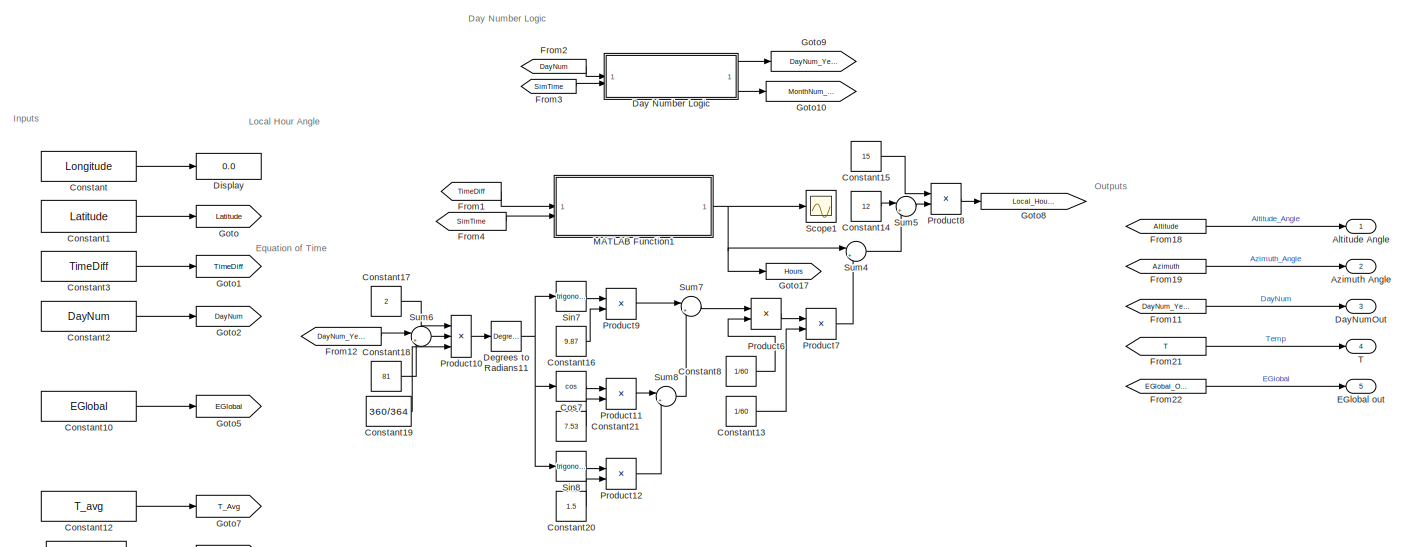
[diagram: root canvas - part 1/2, full width, top band]
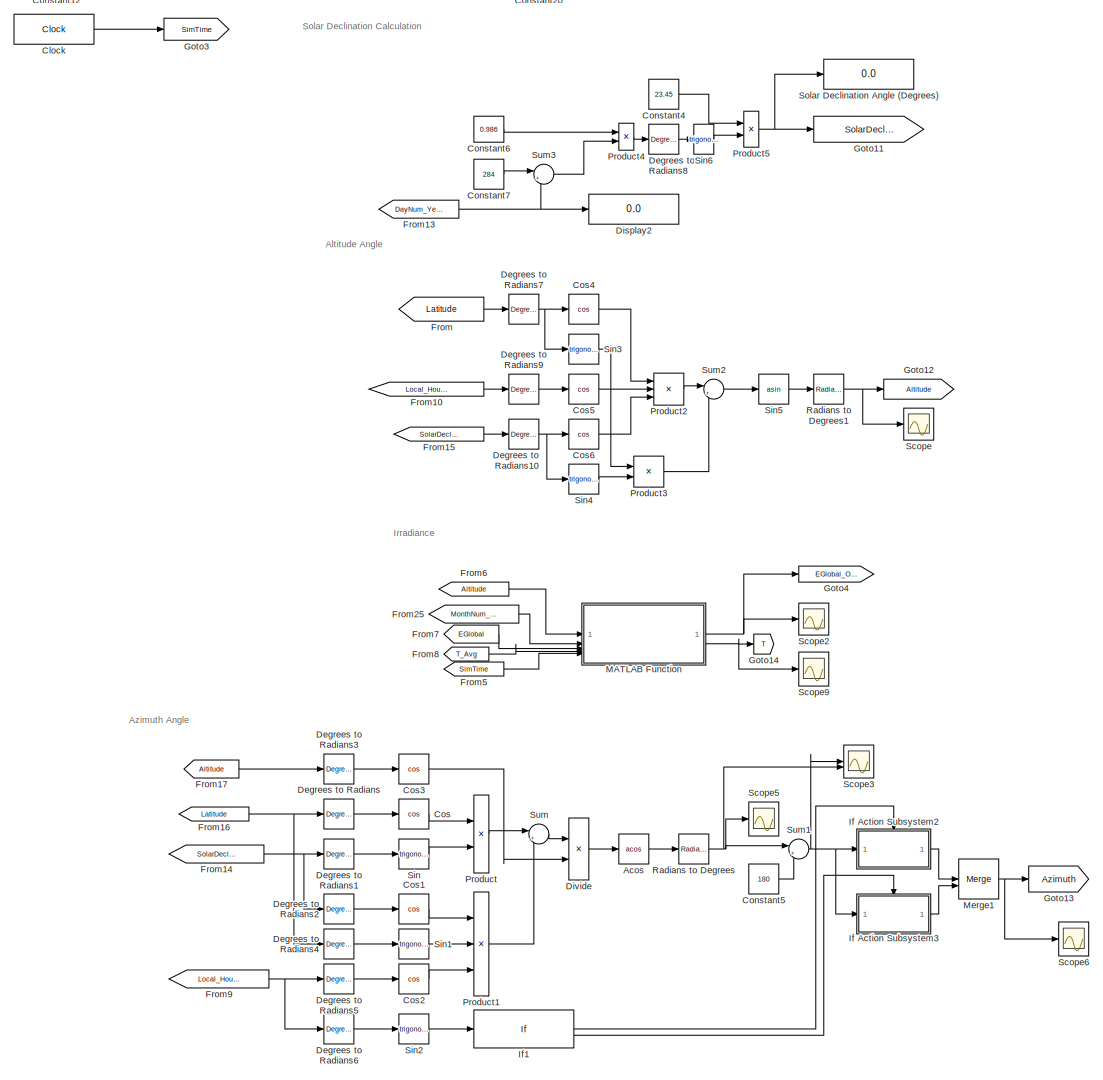
[diagram: root canvas - part 2/2, full width, middle band]
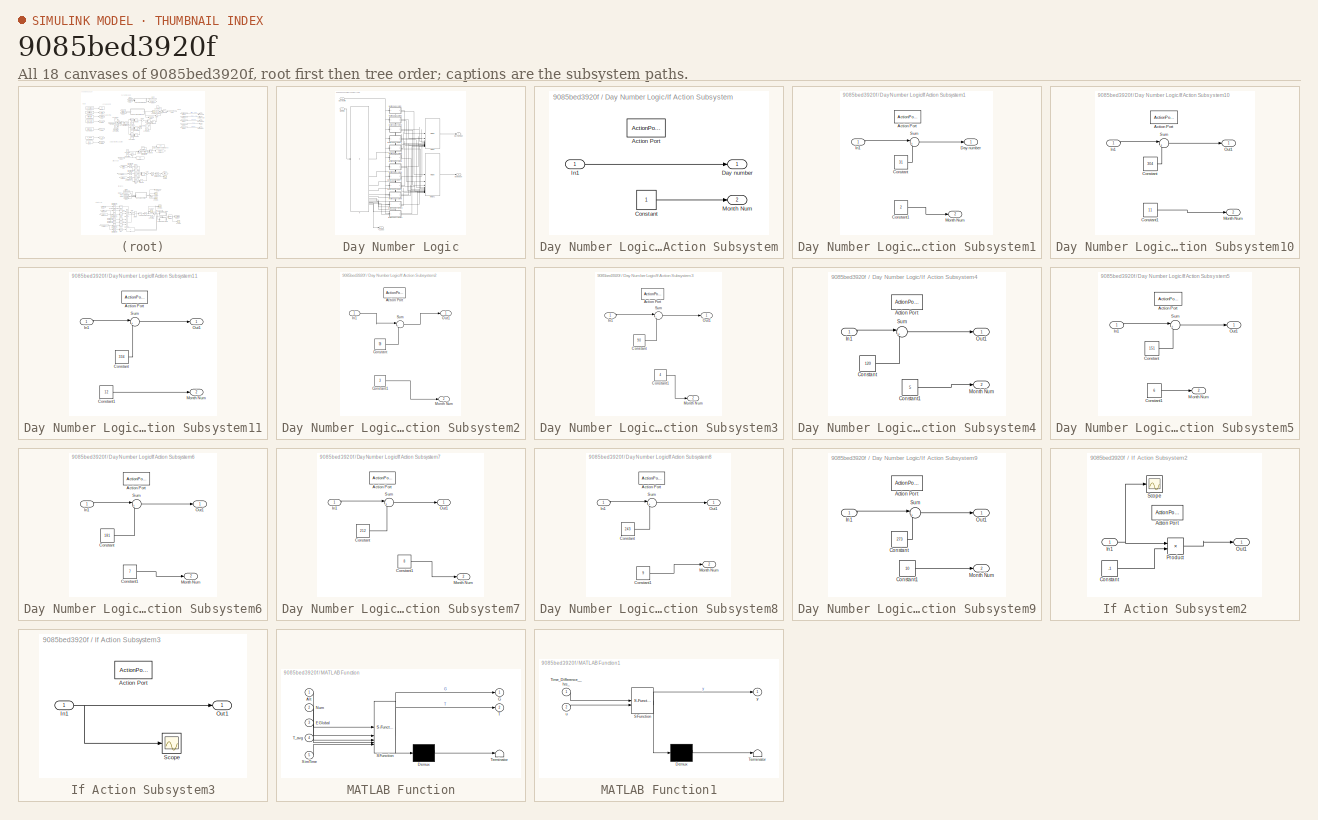
[diagram: thumbnail index - all 18 canvases of the model, root first then tree order]
MODEL slx_9085bed3920f
KIND model
CONFIG AbsTol = auto
CONFIG EnableMultiTasking = off
CONFIG FixedStep = 0.1
CONFIG MaxStep = auto
CONFIG MinStep = auto
CONFIG RelTol = 1e-3
CONFIG SampleTimeConstraint = Unconstrained
CONFIG SolverName = FixedStepAuto
CONFIG StartTime = 0.0
CONFIG StopTime = 1200
BLOCK [Trigonometry] Acos
  Operator = acos
BLOCK [Outport] Altitude Angle
BLOCK [Outport] Azimuth Angle
  Port = 2
BLOCK [Clock] Clock
  Decimation = 100
  DisplayTime = on
BLOCK [Constant] Constant
  Value = Longitude
BLOCK [Constant] Constant1
  Value = Latitude
BLOCK [Constant] Constant10
  Value = EGlobal
BLOCK [Constant] Constant12
  Value = T_avg
BLOCK [Constant] Constant13
  Value = 1/60
BLOCK [Constant] Constant14
  Value = 12
BLOCK [Constant] Constant15
  Value = 15
BLOCK [Constant] Constant16
  Value = 9.87
BLOCK [Constant] Constant17
  Value = 2
BLOCK [Constant] Constant18
  Value = 81
BLOCK [Constant] Constant19
  Value = 360/364
BLOCK [Constant] Constant2
  Value = DayNum
BLOCK [Constant] Constant20
  Value = 1.5
BLOCK [Constant] Constant21
  Value = 7.53
BLOCK [Constant] Constant3
  Value = TimeDiff
BLOCK [Constant] Constant4
  Value = 23.45
BLOCK [Constant] Constant5
  Value = 180
BLOCK [Constant] Constant6
  Value = 0.986
BLOCK [Constant] Constant7
  Value = 284
BLOCK [Constant] Constant8
  Value = 1/60
BLOCK [Trigonometry] Cos
  Operator = cos
BLOCK [Trigonometry] Cos1
  Operator = cos
BLOCK [Trigonometry] Cos2
  Operator = cos
BLOCK [Trigonometry] Cos3
  Operator = cos
BLOCK [Trigonometry] Cos4
  Operator = cos
BLOCK [Trigonometry] Cos5
  Operator = cos
BLOCK [Trigonometry] Cos6
  Operator = cos
BLOCK [Trigonometry] Cos7
  Operator = cos
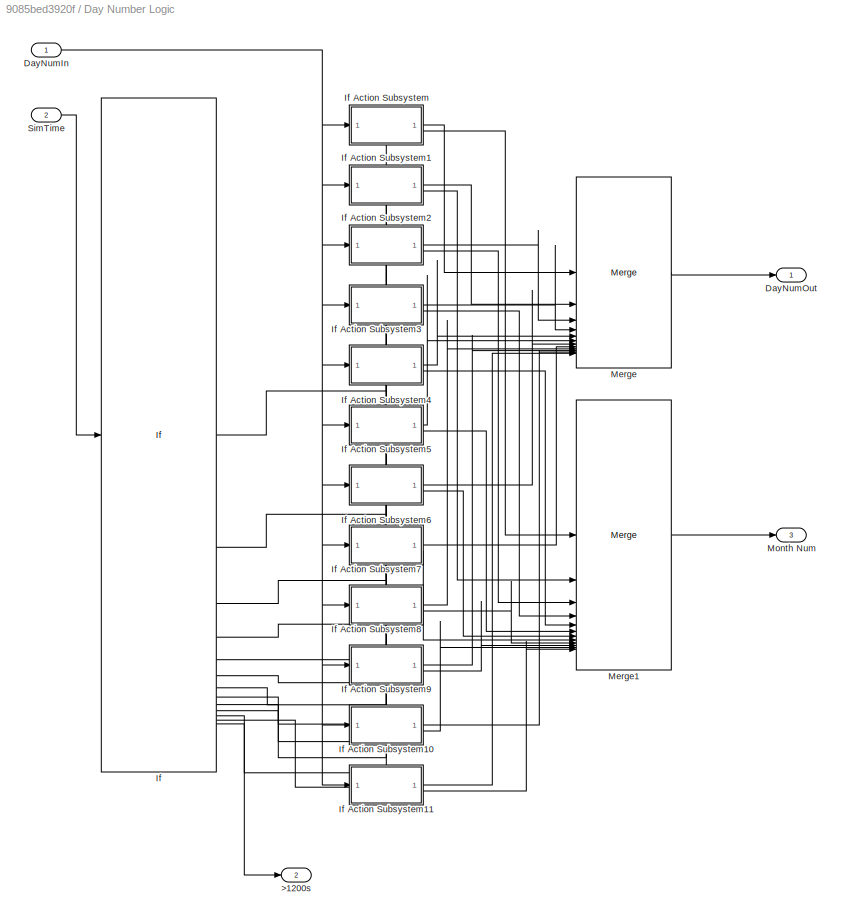
BLOCK [SubSystem] Day Number Logic
BLOCK [Outport] Day Number Logic/>1200s
  Port = 2
BLOCK [Inport] Day Number Logic/DayNumIn
BLOCK [Outport] Day Number Logic/DayNumOut
BLOCK [If] Day Number Logic/If
  ElseIfExpressions = 100<=u1 & u1<200, 200<=u1 & u1<300, 300<=u1 & u1<400, 400<=u1 & u1<500, 500<=u1 & u1<600, 600<=u1 & u1<700, 700<=u1 & u1<800, 800<=u1 & u1<900, 900<=u1 & u1<1000, 1000<=u1 & u1<1100, 1100<=u1 & u1<=1200
  IfExpression = u1 < 100
BLOCK [SubSystem] Day Number Logic/If Action Subsystem
  TreatAsAtomicUnit = on
BLOCK [ActionPort] Day Number Logic/If Action Subsystem/Action Port
  ActionPortLabel = if(u1 < 100)
BLOCK [Constant] Day Number Logic/If Action Subsystem/Constant
BLOCK [Outport] Day Number Logic/If Action Subsystem/Day number
BLOCK [Inport] Day Number Logic/If Action Subsystem/In1
BLOCK [Outport] Day Number Logic/If Action Subsystem/Month Num
  Port = 2
BLOCK [SubSystem] Day Number Logic/If Action Subsystem1
  TreatAsAtomicUnit = on
BLOCK [ActionPort] Day Number Logic/If Action Subsystem1/Action Port
  ActionPortLabel = elseif(100<=u1 & u1<200)
BLOCK [Constant] Day Number Logic/If Action Subsystem1/Constant
  Value = 31
BLOCK [Constant] Day Number Logic/If Action Subsystem1/Constant1
  Value = 2
BLOCK [Outport] Day Number Logic/If Action Subsystem1/Day number
BLOCK [Inport] Day Number Logic/If Action Subsystem1/In1
BLOCK [Outport] Day Number Logic/If Action Subsystem1/Month Num
  Port = 2
BLOCK [Sum] Day Number Logic/If Action Subsystem1/Sum
  Inputs = |++
BLOCK [SubSystem] Day Number Logic/If Action Subsystem10
  TreatAsAtomicUnit = on
BLOCK [ActionPort] Day Number Logic/If Action Subsystem10/Action Port
  ActionPortLabel = elseif( 1000<=u1 & u1<1100)
BLOCK [Constant] Day Number Logic/If Action Subsystem10/Constant
  Value = 304
BLOCK [Constant] Day Number Logic/If Action Subsystem10/Constant1
  Value = 11
BLOCK [Inport] Day Number Logic/If Action Subsystem10/In1
BLOCK [Outport] Day Number Logic/If Action Subsystem10/Month Num
  Port = 2
BLOCK [Outport] Day Number Logic/If Action Subsystem10/Out1
BLOCK [Sum] Day Number Logic/If Action Subsystem10/Sum
  Inputs = |++
BLOCK [SubSystem] Day Number Logic/If Action Subsystem11
  TreatAsAtomicUnit = on
BLOCK [ActionPort] Day Number Logic/If Action Subsystem11/Action Port
  ActionPortLabel = elseif( 1100<=u1 & u1<=1200)
BLOCK [Constant] Day Number Logic/If Action Subsystem11/Constant
  Value = 334
BLOCK [Constant] Day Number Logic/If Action Subsystem11/Constant1
  Value = 12
BLOCK [Inport] Day Number Logic/If Action Subsystem11/In1
BLOCK [Outport] Day Number Logic/If Action Subsystem11/Month Num
  Port = 2
BLOCK [Outport] Day Number Logic/If Action Subsystem11/Out1
BLOCK [Sum] Day Number Logic/If Action Subsystem11/Sum
  Inputs = |++
BLOCK [SubSystem] Day Number Logic/If Action Subsystem2
  TreatAsAtomicUnit = on
BLOCK [ActionPort] Day Number Logic/If Action Subsystem2/Action Port
  ActionPortLabel = elseif( 200<=u1 & u1<300)
BLOCK [Constant] Day Number Logic/If Action Subsystem2/Constant
  Value = 59
BLOCK [Constant] Day Number Logic/If Action Subsystem2/Constant1
  Value = 3
BLOCK [Inport] Day Number Logic/If Action Subsystem2/In1
BLOCK [Outport] Day Number Logic/If Action Subsystem2/Month Num
  Port = 2
BLOCK [Outport] Day Number Logic/If Action Subsystem2/Out1
BLOCK [Sum] Day Number Logic/If Action Subsystem2/Sum
  Inputs = |++
BLOCK [SubSystem] Day Number Logic/If Action Subsystem3
  TreatAsAtomicUnit = on
BLOCK [ActionPort] Day Number Logic/If Action Subsystem3/Action Port
  ActionPortLabel = elseif( 300<=u1 & u1<400)
BLOCK [Constant] Day Number Logic/If Action Subsystem3/Constant
  Value = 90
BLOCK [Constant] Day Number Logic/If Action Subsystem3/Constant1
  Value = 4
BLOCK [Inport] Day Number Logic/If Action Subsystem3/In1
BLOCK [Outport] Day Number Logic/If Action Subsystem3/Month Num
  Port = 2
BLOCK [Outport] Day Number Logic/If Action Subsystem3/Out1
BLOCK [Sum] Day Number Logic/If Action Subsystem3/Sum
  Inputs = |++
BLOCK [SubSystem] Day Number Logic/If Action Subsystem4
  TreatAsAtomicUnit = on
BLOCK [ActionPort] Day Number Logic/If Action Subsystem4/Action Port
  ActionPortLabel = elseif( 400<=u1 & u1<500)
BLOCK [Constant] Day Number Logic/If Action Subsystem4/Constant
  Value = 120
BLOCK [Constant] Day Number Logic/If Action Subsystem4/Constant1
  Value = 5
BLOCK [Inport] Day Number Logic/If Action Subsystem4/In1
BLOCK [Outport] Day Number Logic/If Action Subsystem4/Month Num
  Port = 2
BLOCK [Outport] Day Number Logic/If Action Subsystem4/Out1
BLOCK [Sum] Day Number Logic/If Action Subsystem4/Sum
  Inputs = |++
BLOCK [SubSystem] Day Number Logic/If Action Subsystem5
  TreatAsAtomicUnit = on
BLOCK [ActionPort] Day Number Logic/If Action Subsystem5/Action Port
  ActionPortLabel = elseif( 500<=u1 & u1<600)
BLOCK [Constant] Day Number Logic/If Action Subsystem5/Constant
  Value = 151
BLOCK [Constant] Day Number Logic/If Action Subsystem5/Constant1
  Value = 6
BLOCK [Inport] Day Number Logic/If Action Subsystem5/In1
BLOCK [Outport] Day Number Logic/If Action Subsystem5/Month Num
  Port = 2
BLOCK [Outport] Day Number Logic/If Action Subsystem5/Out1
BLOCK [Sum] Day Number Logic/If Action Subsystem5/Sum
  Inputs = |++
BLOCK [SubSystem] Day Number Logic/If Action Subsystem6
  TreatAsAtomicUnit = on
BLOCK [ActionPort] Day Number Logic/If Action Subsystem6/Action Port
  ActionPortLabel = elseif( 600<=u1 & u1<700)
BLOCK [Constant] Day Number Logic/If Action Subsystem6/Constant
  Value = 181
BLOCK [Constant] Day Number Logic/If Action Subsystem6/Constant1
  Value = 7
BLOCK [Inport] Day Number Logic/If Action Subsystem6/In1
BLOCK [Outport] Day Number Logic/If Action Subsystem6/Month Num
  Port = 2
BLOCK [Outport] Day Number Logic/If Action Subsystem6/Out1
BLOCK [Sum] Day Number Logic/If Action Subsystem6/Sum
  Inputs = |++
BLOCK [SubSystem] Day Number Logic/If Action Subsystem7
  TreatAsAtomicUnit = on
BLOCK [ActionPort] Day Number Logic/If Action Subsystem7/Action Port
  ActionPortLabel = elseif( 700<=u1 & u1<800)
BLOCK [Constant] Day Number Logic/If Action Subsystem7/Constant
  Value = 212
BLOCK [Constant] Day Number Logic/If Action Subsystem7/Constant1
  Value = 8
BLOCK [Inport] Day Number Logic/If Action Subsystem7/In1
BLOCK [Outport] Day Number Logic/If Action Subsystem7/Month Num
  Port = 2
BLOCK [Outport] Day Number Logic/If Action Subsystem7/Out1
BLOCK [Sum] Day Number Logic/If Action Subsystem7/Sum
  Inputs = |++
BLOCK [SubSystem] Day Number Logic/If Action Subsystem8
  TreatAsAtomicUnit = on
BLOCK [ActionPort] Day Number Logic/If Action Subsystem8/Action Port
  ActionPortLabel = elseif( 800<=u1 & u1<900)
BLOCK [Constant] Day Number Logic/If Action Subsystem8/Constant
  Value = 243
BLOCK [Constant] Day Number Logic/If Action Subsystem8/Constant1
  Value = 9
BLOCK [Inport] Day Number Logic/If Action Subsystem8/In1
BLOCK [Outport] Day Number Logic/If Action Subsystem8/Month Num
  Port = 2
BLOCK [Outport] Day Number Logic/If Action Subsystem8/Out1
BLOCK [Sum] Day Number Logic/If Action Subsystem8/Sum
  Inputs = |++
BLOCK [SubSystem] Day Number Logic/If Action Subsystem9
  TreatAsAtomicUnit = on
BLOCK [ActionPort] Day Number Logic/If Action Subsystem9/Action Port
  ActionPortLabel = elseif( 900<=u1 & u1<1000)
BLOCK [Constant] Day Number Logic/If Action Subsystem9/Constant
  Value = 273
BLOCK [Constant] Day Number Logic/If Action Subsystem9/Constant1
  Value = 10
BLOCK [Inport] Day Number Logic/If Action Subsystem9/In1
BLOCK [Outport] Day Number Logic/If Action Subsystem9/Month Num
  Port = 2
BLOCK [Outport] Day Number Logic/If Action Subsystem9/Out1
BLOCK [Sum] Day Number Logic/If Action Subsystem9/Sum
  Inputs = |++
BLOCK [Merge] Day Number Logic/Merge
  Inputs = 12
BLOCK [Merge] Day Number Logic/Merge1
  Inputs = 12
BLOCK [Outport] Day Number Logic/Month Num
  Port = 3
BLOCK [Inport] Day Number Logic/SimTime
  Port = 2
BLOCK [Outport] DayNumOut
  Port = 3
BLOCK [Reference] Degrees to Radians  REF=simulink_extras/Transformations/Degrees to
Radians
  SourceBlock = simulink_extras/Transformations/Degrees to\nRadians
  SourceType = DegreesToRadians
BLOCK [Reference] Degrees to Radians1  REF=simulink_extras/Transformations/Degrees to
Radians
  SourceBlock = simulink_extras/Transformations/Degrees to\nRadians
  SourceType = DegreesToRadians
BLOCK [Reference] Degrees to Radians10  REF=simulink_extras/Transformations/Degrees to
Radians
  SourceBlock = simulink_extras/Transformations/Degrees to\nRadians
  SourceType = DegreesToRadians
BLOCK [Reference] Degrees to Radians11  REF=simulink_extras/Transformations/Degrees to
Radians
  SourceBlock = simulink_extras/Transformations/Degrees to\nRadians
  SourceType = DegreesToRadians
BLOCK [Reference] Degrees to Radians2  REF=simulink_extras/Transformations/Degrees to
Radians
  SourceBlock = simulink_extras/Transformations/Degrees to\nRadians
  SourceType = DegreesToRadians
BLOCK [Reference] Degrees to Radians3  REF=simulink_extras/Transformations/Degrees to
Radians
  SourceBlock = simulink_extras/Transformations/Degrees to\nRadians
  SourceType = DegreesToRadians
BLOCK [Reference] Degrees to Radians4  REF=simulink_extras/Transformations/Degrees to
Radians
  SourceBlock = simulink_extras/Transformations/Degrees to\nRadians
  SourceType = DegreesToRadians
BLOCK [Reference] Degrees to Radians5  REF=simulink_extras/Transformations/Degrees to
Radians
  SourceBlock = simulink_extras/Transformations/Degrees to\nRadians
  SourceType = DegreesToRadians
BLOCK [Reference] Degrees to Radians6  REF=simulink_extras/Transformations/Degrees to
Radians
  SourceBlock = simulink_extras/Transformations/Degrees to\nRadians
  SourceType = DegreesToRadians
BLOCK [Reference] Degrees to Radians7  REF=simulink_extras/Transformations/Degrees to
Radians
  SourceBlock = simulink_extras/Transformations/Degrees to\nRadians
  SourceType = DegreesToRadians
BLOCK [Reference] Degrees to Radians8  REF=simulink_extras/Transformations/Degrees to
Radians
  SourceBlock = simulink_extras/Transformations/Degrees to\nRadians
  SourceType = DegreesToRadians
BLOCK [Reference] Degrees to Radians9  REF=simulink_extras/Transformations/Degrees to
Radians
  SourceBlock = simulink_extras/Transformations/Degrees to\nRadians
  SourceType = DegreesToRadians
BLOCK [Display] Display
  Decimation = 1
BLOCK [Display] Display2
  Decimation = 1
BLOCK [Product] Divide
  Inputs = */
BLOCK [Outport] EGlobal out
  Port = 5
BLOCK [From] From
  GotoTag = Latitude
BLOCK [From] From1
  GotoTag = TimeDiff
BLOCK [From] From10
  GotoTag = Local_Hour_Angle
BLOCK [From] From11
  GotoTag = DayNum_Year
BLOCK [From] From12
  GotoTag = DayNum_Year
BLOCK [From] From13
  GotoTag = DayNum_Year
BLOCK [From] From14
  GotoTag = SolarDeclination
BLOCK [From] From15
  GotoTag = SolarDeclination
BLOCK [From] From16
  GotoTag = Latitude
BLOCK [From] From17
  GotoTag = Altitude
BLOCK [From] From18
  GotoTag = Altitude
BLOCK [From] From19
  GotoTag = Azimuth
BLOCK [From] From2
  GotoTag = DayNum
BLOCK [From] From21
  GotoTag = T
BLOCK [From] From22
  GotoTag = EGlobal_Out
BLOCK [From] From25
  GotoTag = MonthNum_Year
BLOCK [From] From3
  GotoTag = SimTime
BLOCK [From] From4
  GotoTag = SimTime
BLOCK [From] From5
  GotoTag = SimTime
BLOCK [From] From6
  GotoTag = Altitude
BLOCK [From] From7
  GotoTag = EGlobal
BLOCK [From] From8
  GotoTag = T_Avg
BLOCK [From] From9
  GotoTag = Local_Hour_Angle
BLOCK [Goto] Goto
  GotoTag = Latitude
BLOCK [Goto] Goto1
  GotoTag = TimeDiff
BLOCK [Goto] Goto10
  GotoTag = MonthNum_Year
BLOCK [Goto] Goto11
  GotoTag = SolarDeclination
BLOCK [Goto] Goto12
  GotoTag = Altitude
BLOCK [Goto] Goto13
  GotoTag = Azimuth
BLOCK [Goto] Goto14
  GotoTag = T
BLOCK [Goto] Goto17
  GotoTag = Hours
BLOCK [Goto] Goto2
  GotoTag = DayNum
BLOCK [Goto] Goto3
  GotoTag = SimTime
BLOCK [Goto] Goto4
  GotoTag = EGlobal_Out
BLOCK [Goto] Goto5
  GotoTag = EGlobal
BLOCK [Goto] Goto7
  GotoTag = T_Avg
BLOCK [Goto] Goto8
  GotoTag = Local_Hour_Angle
BLOCK [Goto] Goto9
  GotoTag = DayNum_Year
BLOCK [SubSystem] If Action Subsystem2
  TreatAsAtomicUnit = on
BLOCK [ActionPort] If Action Subsystem2/Action Port
  ActionPortLabel = if(u1 > 0)
BLOCK [Constant] If Action Subsystem2/Constant
  Value = -1
BLOCK [Inport] If Action Subsystem2/In1
BLOCK [Outport] If Action Subsystem2/Out1
BLOCK [Product] If Action Subsystem2/Product
BLOCK [Scope] If Action Subsystem2/Scope
  Floating = off
  NumInputPorts = 1
  ScopeSpecificationString = Simulink.scopes.TimeScopeBlockCfg('CurrentConfiguration', extmgr.ConfigurationSet(extmgr.Configuration('Core','General UI',true),extmgr.Configuration('Core','Source UI',true),extmgr.Configuration('Sources','WiredSimulink',true,'DataLoggingVariableName','ScopeData1'),extmgr.Configuration('Visuals','Time Domain',true,'SerializedDisplays',{struct('MinYLimReal','-202.46258','MaxYLimReal','22.46675','Y...<+1463ch>
BLOCK [SubSystem] If Action Subsystem3
  TreatAsAtomicUnit = on
BLOCK [ActionPort] If Action Subsystem3/Action Port
  ActionPortLabel = else
BLOCK [Inport] If Action Subsystem3/In1
BLOCK [Outport] If Action Subsystem3/Out1
BLOCK [Scope] If Action Subsystem3/Scope
  Floating = off
  NumInputPorts = 1
  ScopeSpecificationString = Simulink.scopes.TimeScopeBlockCfg('CurrentConfiguration', extmgr.ConfigurationSet(extmgr.Configuration('Core','General UI',true),extmgr.Configuration('Core','Source UI',true),extmgr.Configuration('Sources','WiredSimulink',true,'DataLoggingVariableName','ScopeData2'),extmgr.Configuration('Visuals','Time Domain',true,'SerializedDisplays',{struct('MinYLimReal','-202.45968','MaxYLimReal','22.46643','Y...<+1463ch>
BLOCK [If] If1
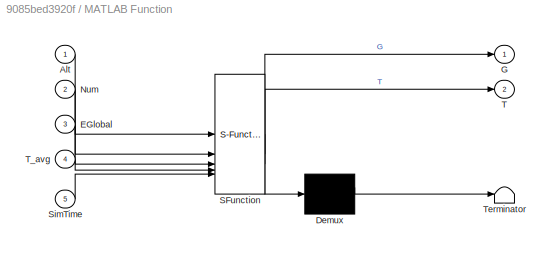
BLOCK [SubSystem] MATLAB Function
  ErrorFcn = Stateflow.Translate.translate
  PermitHierarchicalResolution = ExplicitOnly
  SFBlockType = MATLAB Function
  TreatAsAtomicUnit = on
BLOCK [Demux] MATLAB Function/ Demux 
  Outputs = 1
BLOCK [S-Function] MATLAB Function/ SFunction 
  EnableBusSupport = on
  FunctionName = sf_sfun
  PortCounts = [5 3]
  SFcnIsStateOwnerBlock = off
  SFunctionDeploymentMode = off
  Tag = Stateflow S-Function 1
BLOCK [Terminator] MATLAB Function/ Terminator 
BLOCK [Inport] MATLAB Function/Alt
BLOCK [Inport] MATLAB Function/EGlobal
  Port = 3
BLOCK [Outport] MATLAB Function/G
BLOCK [Inport] MATLAB Function/Num
  Port = 2
BLOCK [Inport] MATLAB Function/SimTime
  Port = 5
BLOCK [Outport] MATLAB Function/T
  Port = 2
BLOCK [Inport] MATLAB Function/T_avg
  Port = 4
BLOCK [SubSystem] MATLAB Function1
  ErrorFcn = Stateflow.Translate.translate
  PermitHierarchicalResolution = ExplicitOnly
  SFBlockType = MATLAB Function
  TreatAsAtomicUnit = on
BLOCK [Demux] MATLAB Function1/ Demux 
  Outputs = 1
BLOCK [S-Function] MATLAB Function1/ SFunction 
  EnableBusSupport = on
  FunctionName = sf_sfun
  PortCounts = [2 2]
  SFcnIsStateOwnerBlock = off
  SFunctionDeploymentMode = off
  Tag = Stateflow S-Function 2
BLOCK [Terminator] MATLAB Function1/ Terminator 
BLOCK [Inport] MATLAB Function1/Time_Difference__hrs_
BLOCK [Inport] MATLAB Function1/u
  Port = 2
BLOCK [Outport] MATLAB Function1/y
BLOCK [Merge] Merge1
BLOCK [Product] Product
BLOCK [Product] Product1
  Inputs = 3
BLOCK [Product] Product10
  Inputs = 3
BLOCK [Product] Product11
BLOCK [Product] Product12
BLOCK [Product] Product2
  Inputs = 3
BLOCK [Product] Product3
BLOCK [Product] Product4
BLOCK [Product] Product5
BLOCK [Product] Product6
BLOCK [Product] Product7
BLOCK [Product] Product8
BLOCK [Product] Product9
BLOCK [Reference] Radians to Degrees  REF=simulink_extras/Transformations/Radians
to Degrees
  SourceBlock = simulink_extras/Transformations/Radians\nto Degrees
  SourceType = RadiansToDegrees
BLOCK [Reference] Radians to Degrees1  REF=simulink_extras/Transformations/Radians
to Degrees
  SourceBlock = simulink_extras/Transformations/Radians\nto Degrees
  SourceType = RadiansToDegrees
BLOCK [Scope] Scope
  Floating = off
  NumInputPorts = 1
  ScopeSpecificationString = Simulink.scopes.TimeScopeBlockCfg('CurrentConfiguration', extmgr.ConfigurationSet(extmgr.Configuration('Core','General UI',true),extmgr.Configuration('Core','Source UI',true),extmgr.Configuration('Sources','WiredSimulink',true,'DataLoggingVariableName','ScopeData3'),extmgr.Configuration('Visuals','Time Domain',true,'SerializedDisplays',{struct('MinYLimReal','-108.58729','MaxYLimReal','108.76384','...<+1927ch>
BLOCK [Scope] Scope1
  Floating = off
  NumInputPorts = 1
  ScopeSpecificationString = Simulink.scopes.TimeScopeBlockCfg('CurrentConfiguration', extmgr.ConfigurationSet(extmgr.Configuration('Core','General UI',true),extmgr.Configuration('Core','Source UI',true),extmgr.Configuration('Sources','WiredSimulink',true),extmgr.Configuration('Visuals','Time Domain',true,'SerializedDisplays',{struct('MinYLimReal','-2.997','MaxYLimReal','26.973','YLabelReal','','MinYLimMag','0.00000','MaxYLim...<+1446ch>
BLOCK [Scope] Scope2
  Floating = off
  NumInputPorts = 1
  ScopeSpecificationString = Simulink.scopes.TimeScopeBlockCfg('CurrentConfiguration', extmgr.ConfigurationSet(extmgr.Configuration('Core','General UI',true),extmgr.Configuration('Core','Source UI',true),extmgr.Configuration('Sources','WiredSimulink',true,'DataLoggingVariableName','ScopeData1'),extmgr.Configuration('Visuals','Time Domain',true,'SerializedDisplays',{struct('MinYLimReal','-2141.53509','MaxYLimReal','3578.81721'...<+1872ch>
BLOCK [Scope] Scope3
  Floating = off
  NumInputPorts = 2
  ScopeSpecificationString = Simulink.scopes.TimeScopeBlockCfg('CurrentConfiguration', extmgr.ConfigurationSet(extmgr.Configuration('Core','General UI',true),extmgr.Configuration('Core','Source UI',true),extmgr.Configuration('Sources','WiredSimulink',true,'DataLoggingVariableName','ScopeData3'),extmgr.Configuration('Visuals','Time Domain',true,'SerializedDisplays',{struct('MinYLimReal','-202.85711','MaxYLimReal','26.02981','Y...<+1558ch>
BLOCK [Scope] Scope5
  Floating = off
  NumInputPorts = 1
  ScopeSpecificationString = Simulink.scopes.TimeScopeBlockCfg('CurrentConfiguration', extmgr.ConfigurationSet(extmgr.Configuration('Core','General UI',true),extmgr.Configuration('Core','Source UI',true),extmgr.Configuration('Sources','WiredSimulink',true,'DataLoggingVariableName','ScopeData7'),extmgr.Configuration('Visuals','Time Domain',true,'SerializedDisplays',{struct('MinYLimReal','-22.46258','MaxYLimReal','202.46675','Y...<+1506ch>
BLOCK [Scope] Scope6
  Floating = off
  NumInputPorts = 1
  ScopeSpecificationString = Simulink.scopes.TimeScopeBlockCfg('CurrentConfiguration', extmgr.ConfigurationSet(extmgr.Configuration('Core','General UI',true),extmgr.Configuration('Core','Source UI',true),extmgr.Configuration('Sources','WiredSimulink',true,'DataLoggingVariableName','ScopeData4'),extmgr.Configuration('Visuals','Time Domain',true,'SerializedDisplays',{struct('MinYLimReal','-224.98421','MaxYLimReal','224.98444','...<+1581ch>
BLOCK [Scope] Scope9
  Floating = off
  NumInputPorts = 1
  ScopeSpecificationString = Simulink.scopes.TimeScopeBlockCfg('CurrentConfiguration', extmgr.ConfigurationSet(extmgr.Configuration('Core','General UI',true),extmgr.Configuration('Core','Source UI',true),extmgr.Configuration('Sources','WiredSimulink',true,'DataLoggingVariableName','ScopeData1'),extmgr.Configuration('Visuals','Time Domain',true,'SerializedDisplays',{struct('MinYLimReal','4.28375','MaxYLimReal','15.14625','YLab...<+1822ch>
BLOCK [Trigonometry] Sin
BLOCK [Trigonometry] Sin1
BLOCK [Trigonometry] Sin2
BLOCK [Trigonometry] Sin3
BLOCK [Trigonometry] Sin4
BLOCK [Trigonometry] Sin5
  Operator = asin
BLOCK [Trigonometry] Sin6
BLOCK [Trigonometry] Sin7
BLOCK [Trigonometry] Sin8
BLOCK [Display] Solar Declination Angle (Degrees)
  Decimation = 1
BLOCK [Sum] Sum
  Inputs = |+-
BLOCK [Sum] Sum1
  Inputs = |+-
BLOCK [Sum] Sum2
  Inputs = |++
BLOCK [Sum] Sum3
  Inputs = |++
BLOCK [Sum] Sum4
  Inputs = |++
BLOCK [Sum] Sum5
  Inputs = |+-
BLOCK [Sum] Sum6
  Inputs = |+-
BLOCK [Sum] Sum7
  Inputs = |+-
BLOCK [Sum] Sum8
  Inputs = |+-
BLOCK [Outport] T
  Port = 4
ANNOTATION (root): Altitude Angle
ANNOTATION (root): Azimuth Angle
ANNOTATION (root): Day Number Logic
ANNOTATION (root): Equation of Time
ANNOTATION (root): Inputs
ANNOTATION (root): Irradiance
ANNOTATION (root): Local Hour Angle
ANNOTATION (root): Outputs
ANNOTATION (root): Solar Declination Calculation
LINE Acos:1 -> Radians to Degrees:1
LINE Clock:1 -> Goto3:1
LINE Constant10:1 -> Goto5:1
LINE Constant12:1 -> Goto7:1
LINE Constant13:1 -> Product7:2
LINE Constant14:1 -> Sum5:1
LINE Constant15:1 -> Product8:1
LINE Constant16:1 -> Product9:2
LINE Constant17:1 -> Product10:1
LINE Constant18:1 -> Sum6:2
LINE Constant19:1 -> Product10:3
LINE Constant1:1 -> Goto:1
LINE Constant20:1 -> Product12:2
LINE Constant21:1 -> Product11:2
LINE Constant2:1 -> Goto2:1
LINE Constant3:1 -> Goto1:1
LINE Constant4:1 -> Product5:1
LINE Constant5:1 -> Sum1:2
LINE Constant6:1 -> Product4:1
LINE Constant7:1 -> Sum3:1
LINE Constant8:1 -> Product6:2
LINE Constant:1 -> Display:1
LINE Cos1:1 -> Product1:1
LINE Cos2:1 -> Product1:3
LINE Cos3:1 -> Divide:2
LINE Cos4:1 -> Product2:1
LINE Cos5:1 -> Product2:2
LINE Cos6:1 -> Product2:3
LINE Cos7:1 -> Product11:1
LINE Cos:1 -> Product:1
NET Day Number Logic/DayNumIn:1 -> Day Number Logic/If Action Subsystem10:1, Day Number Logic/If Action Subsystem11:1, Day Number Logic/If Action Subsystem1:1, Day Number Logic/If Action Subsystem2:1, Day Number Logic/If Action Subsystem3:1, Day Number Logic/If Action Subsystem4:1, Day Number Logic/If Action Subsystem5:1, Day Number Logic/If Action Subsystem6:1, Day Number Logic/If Action Subsystem7:1, Day Number Logic/If Action Subsystem8:1, Day Number Logic/If Action Subsystem9:1, Day Number Logic/If Action Subsystem:1
LINE Day Number Logic/If Action Subsystem/Constant:1 -> Day Number Logic/If Action Subsystem/Month Num:1
LINE Day Number Logic/If Action Subsystem/In1:1 -> Day Number Logic/If Action Subsystem/Day number:1
LINE Day Number Logic/If Action Subsystem1/Constant1:1 -> Day Number Logic/If Action Subsystem1/Month Num:1
LINE Day Number Logic/If Action Subsystem1/Constant:1 -> Day Number Logic/If Action Subsystem1/Sum:2
LINE Day Number Logic/If Action Subsystem1/In1:1 -> Day Number Logic/If Action Subsystem1/Sum:1
LINE Day Number Logic/If Action Subsystem1/Sum:1 -> Day Number Logic/If Action Subsystem1/Day number:1
LINE Day Number Logic/If Action Subsystem10/Constant1:1 -> Day Number Logic/If Action Subsystem10/Month Num:1
LINE Day Number Logic/If Action Subsystem10/Constant:1 -> Day Number Logic/If Action Subsystem10/Sum:2
LINE Day Number Logic/If Action Subsystem10/In1:1 -> Day Number Logic/If Action Subsystem10/Sum:1
LINE Day Number Logic/If Action Subsystem10/Sum:1 -> Day Number Logic/If Action Subsystem10/Out1:1
LINE Day Number Logic/If Action Subsystem10:1 -> Day Number Logic/Merge:11
LINE Day Number Logic/If Action Subsystem10:2 -> Day Number Logic/Merge1:11
LINE Day Number Logic/If Action Subsystem11/Constant1:1 -> Day Number Logic/If Action Subsystem11/Month Num:1
LINE Day Number Logic/If Action Subsystem11/Constant:1 -> Day Number Logic/If Action Subsystem11/Sum:2
LINE Day Number Logic/If Action Subsystem11/In1:1 -> Day Number Logic/If Action Subsystem11/Sum:1
LINE Day Number Logic/If Action Subsystem11/Sum:1 -> Day Number Logic/If Action Subsystem11/Out1:1
LINE Day Number Logic/If Action Subsystem11:1 -> Day Number Logic/Merge:12
LINE Day Number Logic/If Action Subsystem11:2 -> Day Number Logic/Merge1:12
LINE Day Number Logic/If Action Subsystem1:1 -> Day Number Logic/Merge:2
LINE Day Number Logic/If Action Subsystem1:2 -> Day Number Logic/Merge1:2
LINE Day Number Logic/If Action Subsystem2/Constant1:1 -> Day Number Logic/If Action Subsystem2/Month Num:1
LINE Day Number Logic/If Action Subsystem2/Constant:1 -> Day Number Logic/If Action Subsystem2/Sum:2
LINE Day Number Logic/If Action Subsystem2/In1:1 -> Day Number Logic/If Action Subsystem2/Sum:1
LINE Day Number Logic/If Action Subsystem2/Sum:1 -> Day Number Logic/If Action Subsystem2/Out1:1
LINE Day Number Logic/If Action Subsystem2:1 -> Day Number Logic/Merge:3
LINE Day Number Logic/If Action Subsystem2:2 -> Day Number Logic/Merge1:3
LINE Day Number Logic/If Action Subsystem3/Constant1:1 -> Day Number Logic/If Action Subsystem3/Month Num:1
LINE Day Number Logic/If Action Subsystem3/Constant:1 -> Day Number Logic/If Action Subsystem3/Sum:2
LINE Day Number Logic/If Action Subsystem3/In1:1 -> Day Number Logic/If Action Subsystem3/Sum:1
LINE Day Number Logic/If Action Subsystem3/Sum:1 -> Day Number Logic/If Action Subsystem3/Out1:1
LINE Day Number Logic/If Action Subsystem3:1 -> Day Number Logic/Merge:4
LINE Day Number Logic/If Action Subsystem3:2 -> Day Number Logic/Merge1:4
LINE Day Number Logic/If Action Subsystem4/Constant1:1 -> Day Number Logic/If Action Subsystem4/Month Num:1
LINE Day Number Logic/If Action Subsystem4/Constant:1 -> Day Number Logic/If Action Subsystem4/Sum:2
LINE Day Number Logic/If Action Subsystem4/In1:1 -> Day Number Logic/If Action Subsystem4/Sum:1
LINE Day Number Logic/If Action Subsystem4/Sum:1 -> Day Number Logic/If Action Subsystem4/Out1:1
LINE Day Number Logic/If Action Subsystem4:1 -> Day Number Logic/Merge:5
LINE Day Number Logic/If Action Subsystem4:2 -> Day Number Logic/Merge1:5
LINE Day Number Logic/If Action Subsystem5/Constant1:1 -> Day Number Logic/If Action Subsystem5/Month Num:1
LINE Day Number Logic/If Action Subsystem5/Constant:1 -> Day Number Logic/If Action Subsystem5/Sum:2
LINE Day Number Logic/If Action Subsystem5/In1:1 -> Day Number Logic/If Action Subsystem5/Sum:1
LINE Day Number Logic/If Action Subsystem5/Sum:1 -> Day Number Logic/If Action Subsystem5/Out1:1
LINE Day Number Logic/If Action Subsystem5:1 -> Day Number Logic/Merge:6
LINE Day Number Logic/If Action Subsystem5:2 -> Day Number Logic/Merge1:6
LINE Day Number Logic/If Action Subsystem6/Constant1:1 -> Day Number Logic/If Action Subsystem6/Month Num:1
LINE Day Number Logic/If Action Subsystem6/Constant:1 -> Day Number Logic/If Action Subsystem6/Sum:2
LINE Day Number Logic/If Action Subsystem6/In1:1 -> Day Number Logic/If Action Subsystem6/Sum:1
LINE Day Number Logic/If Action Subsystem6/Sum:1 -> Day Number Logic/If Action Subsystem6/Out1:1
LINE Day Number Logic/If Action Subsystem6:1 -> Day Number Logic/Merge:7
LINE Day Number Logic/If Action Subsystem6:2 -> Day Number Logic/Merge1:7
LINE Day Number Logic/If Action Subsystem7/Constant1:1 -> Day Number Logic/If Action Subsystem7/Month Num:1
LINE Day Number Logic/If Action Subsystem7/Constant:1 -> Day Number Logic/If Action Subsystem7/Sum:2
LINE Day Number Logic/If Action Subsystem7/In1:1 -> Day Number Logic/If Action Subsystem7/Sum:1
LINE Day Number Logic/If Action Subsystem7/Sum:1 -> Day Number Logic/If Action Subsystem7/Out1:1
LINE Day Number Logic/If Action Subsystem7:1 -> Day Number Logic/Merge:8
LINE Day Number Logic/If Action Subsystem7:2 -> Day Number Logic/Merge1:8
LINE Day Number Logic/If Action Subsystem8/Constant1:1 -> Day Number Logic/If Action Subsystem8/Month Num:1
LINE Day Number Logic/If Action Subsystem8/Constant:1 -> Day Number Logic/If Action Subsystem8/Sum:2
LINE Day Number Logic/If Action Subsystem8/In1:1 -> Day Number Logic/If Action Subsystem8/Sum:1
LINE Day Number Logic/If Action Subsystem8/Sum:1 -> Day Number Logic/If Action Subsystem8/Out1:1
LINE Day Number Logic/If Action Subsystem8:1 -> Day Number Logic/Merge:9
LINE Day Number Logic/If Action Subsystem8:2 -> Day Number Logic/Merge1:9
LINE Day Number Logic/If Action Subsystem9/Constant1:1 -> Day Number Logic/If Action Subsystem9/Month Num:1
LINE Day Number Logic/If Action Subsystem9/Constant:1 -> Day Number Logic/If Action Subsystem9/Sum:2
LINE Day Number Logic/If Action Subsystem9/In1:1 -> Day Number Logic/If Action Subsystem9/Sum:1
LINE Day Number Logic/If Action Subsystem9/Sum:1 -> Day Number Logic/If Action Subsystem9/Out1:1
LINE Day Number Logic/If Action Subsystem9:1 -> Day Number Logic/Merge:10
LINE Day Number Logic/If Action Subsystem9:2 -> Day Number Logic/Merge1:10
LINE Day Number Logic/If Action Subsystem:1 -> Day Number Logic/Merge:1
LINE Day Number Logic/If Action Subsystem:2 -> Day Number Logic/Merge1:1
LINE Day Number Logic/If:1 -> Day Number Logic/If Action Subsystem:ifaction
LINE Day Number Logic/If:10 -> Day Number Logic/If Action Subsystem9:ifaction
LINE Day Number Logic/If:11 -> Day Number Logic/If Action Subsystem10:ifaction
LINE Day Number Logic/If:12 -> Day Number Logic/If Action Subsystem11:ifaction
LINE Day Number Logic/If:13 -> Day Number Logic/>1200s:1
LINE Day Number Logic/If:2 -> Day Number Logic/If Action Subsystem1:ifaction
LINE Day Number Logic/If:3 -> Day Number Logic/If Action Subsystem2:ifaction
LINE Day Number Logic/If:4 -> Day Number Logic/If Action Subsystem3:ifaction
LINE Day Number Logic/If:5 -> Day Number Logic/If Action Subsystem4:ifaction
LINE Day Number Logic/If:6 -> Day Number Logic/If Action Subsystem5:ifaction
LINE Day Number Logic/If:7 -> Day Number Logic/If Action Subsystem6:ifaction
LINE Day Number Logic/If:8 -> Day Number Logic/If Action Subsystem7:ifaction
LINE Day Number Logic/If:9 -> Day Number Logic/If Action Subsystem8:ifaction
LINE Day Number Logic/Merge1:1 -> Day Number Logic/Month Num:1
LINE Day Number Logic/Merge:1 -> Day Number Logic/DayNumOut:1
LINE Day Number Logic/SimTime:1 -> Day Number Logic/If:1
LINE Day Number Logic:1 -> Goto9:1
LINE Day Number Logic:3 -> Goto10:1
NET Degrees to Radians10:1 -> Cos6:1, Sin4:1
NET Degrees to Radians11:1 -> Cos7:1, Sin7:1, Sin8:1
LINE Degrees to Radians1:1 -> Sin:1
LINE Degrees to Radians2:1 -> Cos1:1
LINE Degrees to Radians3:1 -> Cos3:1
LINE Degrees to Radians4:1 -> Sin1:1
LINE Degrees to Radians5:1 -> Cos2:1
LINE Degrees to Radians6:1 -> Sin2:1
NET Degrees to Radians7:1 -> Cos4:1, Sin3:1
LINE Degrees to Radians8:1 -> Sin6:1
LINE Degrees to Radians9:1 -> Cos5:1
LINE Degrees to Radians:1 -> Cos:1
LINE Divide:1 -> Acos:1
LINE From10:1 -> Degrees to Radians9:1
LINE From11:1 -> DayNumOut:1
LINE From12:1 -> Sum6:1
NET From13:1 -> Display2:1, Sum3:2
NET From14:1 -> Degrees to Radians1:1, Degrees to Radians2:1
LINE From15:1 -> Degrees to Radians10:1
NET From16:1 -> Degrees to Radians4:1, Degrees to Radians:1
LINE From17:1 -> Degrees to Radians3:1
LINE From18:1 -> Altitude Angle:1
LINE From19:1 -> Azimuth Angle:1
LINE From1:1 -> MATLAB Function1:1
LINE From21:1 -> T:1
LINE From22:1 -> EGlobal out:1
LINE From25:1 -> MATLAB Function:2
LINE From2:1 -> Day Number Logic:1
LINE From3:1 -> Day Number Logic:2
LINE From4:1 -> MATLAB Function1:2
LINE From5:1 -> MATLAB Function:5
LINE From6:1 -> MATLAB Function:1
LINE From7:1 -> MATLAB Function:3
LINE From8:1 -> MATLAB Function:4
NET From9:1 -> Degrees to Radians5:1, Degrees to Radians6:1
LINE From:1 -> Degrees to Radians7:1
LINE If Action Subsystem2/Constant:1 -> If Action Subsystem2/Product:2
NET If Action Subsystem2/In1:1 -> If Action Subsystem2/Product:1, If Action Subsystem2/Scope:1
LINE If Action Subsystem2/Product:1 -> If Action Subsystem2/Out1:1
LINE If Action Subsystem2:1 -> Merge1:1
NET If Action Subsystem3/In1:1 -> If Action Subsystem3/Out1:1, If Action Subsystem3/Scope:1
LINE If Action Subsystem3:1 -> Merge1:2
LINE If1:1 -> If Action Subsystem2:ifaction
LINE If1:2 -> If Action Subsystem3:ifaction
NET MATLAB Function1:1 -> Goto17:1, Scope1:1, Sum4:1
NET MATLAB Function:1 -> Goto4:1, Scope2:1
NET MATLAB Function:2 -> Goto14:1, Scope9:1
NET Merge1:1 -> Goto13:1, Scope6:1
LINE Product10:1 -> Degrees to Radians11:1
LINE Product11:1 -> Sum8:1
LINE Product12:1 -> Sum8:2
LINE Product1:1 -> Sum:2
LINE Product2:1 -> Sum2:1
LINE Product3:1 -> Sum2:2
LINE Product4:1 -> Degrees to Radians8:1
NET Product5:1 -> Goto11:1, Solar Declination Angle (Degrees):1
LINE Product6:1 -> Product7:1
LINE Product7:1 -> Sum4:2
LINE Product8:1 -> Goto8:1
LINE Product9:1 -> Sum7:1
LINE Product:1 -> Sum:1
NET Radians to Degrees1:1 -> Goto12:1, Scope:1
NET Radians to Degrees:1 -> Scope3:2, Scope5:1, Sum1:1
LINE Sin1:1 -> Product1:2
LINE Sin2:1 -> If1:1
LINE Sin3:1 -> Product3:1
LINE Sin4:1 -> Product3:2
LINE Sin5:1 -> Radians to Degrees1:1
LINE Sin6:1 -> Product5:2
LINE Sin7:1 -> Product9:1
LINE Sin8:1 -> Product12:1
LINE Sin:1 -> Product:2
NET Sum1:1 -> If Action Subsystem2:1, If Action Subsystem3:1, Scope3:1
LINE Sum2:1 -> Sin5:1
LINE Sum3:1 -> Product4:2
LINE Sum4:1 -> Sum5:2
LINE Sum5:1 -> Product8:2
LINE Sum6:1 -> Product10:2
LINE Sum7:1 -> Product6:1
LINE Sum8:1 -> Sum7:2
LINE Sum:1 -> Divide:1
note: NET lines group one-source signal fan-out (src -> all destinations, sorted); 1:1 wires keep LINE
CHART MATLAB Function states=1 transitions=1
  STATE_LABEL 'eML_blk_kernel()'
  STATE_LABEL 'SCRIPT:\nfunction [G, T] = fcn(Alt, Num, EGlobal, T_avg, SimTime)\nT = T_avg(Num);\nN = ((SimTime - (100 * (Num - 1))) * 24) / 100;\nN = floor(N+1);\nif Alt <= 0\n    G = 0\nelse\n    if N == 25\n        G = 0;\n    else\n        G = EGlobal(N ,Num);\n    \n    end\nend'
CHART MATLAB Function1 states=1 transitions=1
  STATE_LABEL 'eML_blk_kernel()'
  STATE_LABEL 'SCRIPT:\nfunction y = fcn(Time_Difference__hrs_, u)\ndiff = Time_Difference__hrs_/100;\na = u/100;\nb = a + diff;\ny = mod((24 * b),24);\n'
CHART  states=0 transitions=0
CHART  states=0 transitions=0
